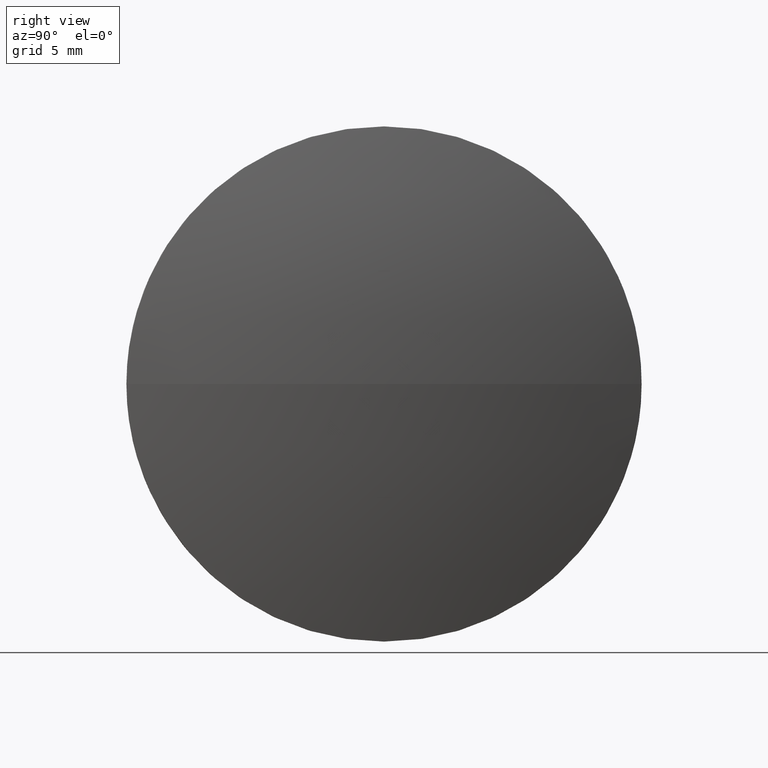
[diagram: clean part render]
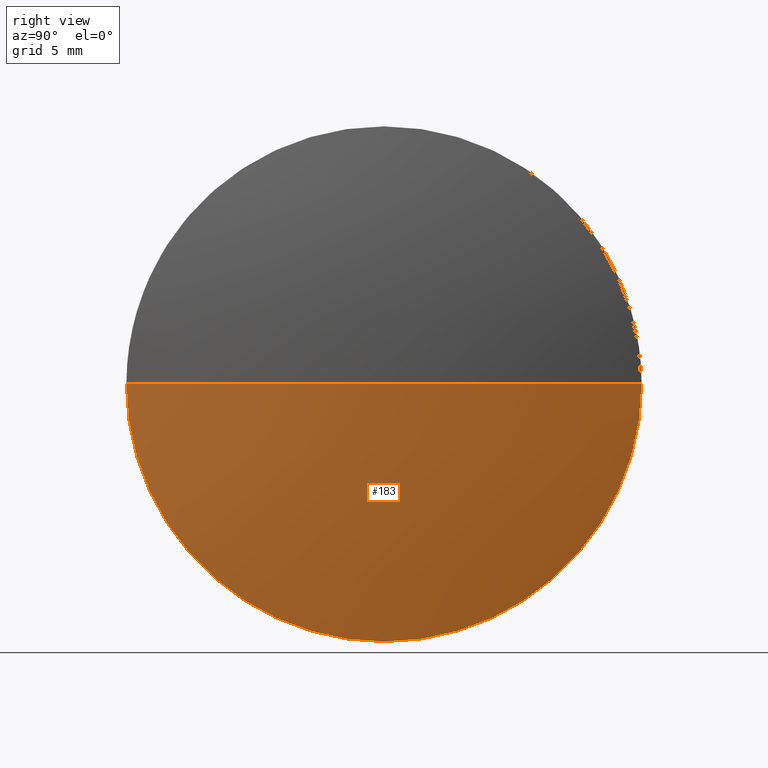
[diagram: same view with one face highlighted and labeled with its STEP entity id]
A machine part, right view. The second image highlights one B-rep face of the part: STEP entity #183.
In plain terms, the highlighted spherical surface has radius 82.5308 mm.
Its self-contained STEP definition (entity closure, byte-faithful):
#1 = CARTESIAN_POINT ( 'NONE',  ( 459.2914818533709500, 106.5576231808466900, -19.99999999999998900 ) ) ;
#2 = DIRECTION ( 'NONE',  ( -1.000000000000000000, -0.0000000000000000000, -0.0000000000000000000 ) ) ;
#4 = ORIENTED_EDGE ( 'NONE', *, *, #102, .F. ) ;
#9 = DIRECTION ( 'NONE',  ( 0.0000000000000000000, 1.000000000000000000, 0.0000000000000000000 ) ) ;
#12 = AXIS2_PLACEMENT_3D ( 'NONE', #21, #64, #93 ) ;
#21 = CARTESIAN_POINT ( 'NONE',  ( 379.2206688452406500, 106.5576231808466300, 0.0000000000000000000 ) ) ;
#23 = ORIENTED_EDGE ( 'NONE', *, *, #77, .T. ) ;
#27 = CARTESIAN_POINT ( 'NONE',  ( 461.7514818533708800, 106.5576231808466300, 0.0000000000000000000 ) ) ;
#28 = CIRCLE ( 'NONE', #12, 82.53081300813025200 ) ;
#29 = DIRECTION ( 'NONE',  ( 0.0000000000000000000, 1.224646799147353200E-016, -1.000000000000000000 ) ) ;
#32 = CARTESIAN_POINT ( 'NONE',  ( 379.2206688452406500, 106.5576231808466300, 0.0000000000000000000 ) ) ;
#39 = VERTEX_POINT ( 'NONE', #27 ) ;
#41 = CARTESIAN_POINT ( 'NONE',  ( 459.2914818533709500, 126.5576231808466500, 0.0000000000000000000 ) ) ;
#48 = DIRECTION ( 'NONE',  ( 0.0000000000000000000, 0.0000000000000000000, 1.000000000000000000 ) ) ;
#52 = ORIENTED_EDGE ( 'NONE', *, *, #116, .F. ) ;
#58 = DIRECTION ( 'NONE',  ( 0.0000000000000000000, 0.0000000000000000000, 1.000000000000000000 ) ) ;
#61 = AXIS2_PLACEMENT_3D ( 'NONE', #125, #92, #48 ) ;
#64 = DIRECTION ( 'NONE',  ( -0.0000000000000000000, 0.0000000000000000000, 1.000000000000000000 ) ) ;
#65 = DIRECTION ( 'NONE',  ( -0.0000000000000000000, 0.0000000000000000000, -1.000000000000000000 ) ) ;
#67 = EDGE_CURVE ( 'NONE', #95, #85, #132, .T. ) ;
#77 = EDGE_CURVE ( 'NONE', #39, #185, #175, .T. ) ;
#81 = ORIENTED_EDGE ( 'NONE', *, *, #67, .F. ) ;
#83 = AXIS2_PLACEMENT_3D ( 'NONE', #32, #65, #9 ) ;
#85 = VERTEX_POINT ( 'NONE', #1 ) ;
#87 = CARTESIAN_POINT ( 'NONE',  ( 459.2914818533709500, 106.5576231808466900, 0.0000000000000000000 ) ) ;
#92 = DIRECTION ( 'NONE',  ( -1.000000000000000000, -0.0000000000000000000, -0.0000000000000000000 ) ) ;
#93 = DIRECTION ( 'NONE',  ( 1.000000000000000000, 0.0000000000000000000, 0.0000000000000000000 ) ) ;
#95 = VERTEX_POINT ( 'NONE', #41 ) ;
#102 = EDGE_CURVE ( 'NONE', #85, #185, #149, .T. ) ;
#106 = CARTESIAN_POINT ( 'NONE',  ( 379.2206688452406500, 106.5576231808466300, 0.0000000000000000000 ) ) ;
#112 = CARTESIAN_POINT ( 'NONE',  ( 459.2914818533709500, 86.55762318084667600, -2.449293598294701000E-015 ) ) ;
#116 = EDGE_CURVE ( 'NONE', #39, #95, #28, .T. ) ;
#120 = DIRECTION ( 'NONE',  ( 0.0000000000000000000, 1.000000000000000000, 1.224646799147353200E-016 ) ) ;
#125 = CARTESIAN_POINT ( 'NONE',  ( 459.2914818533709500, 106.5576231808466900, 0.0000000000000000000 ) ) ;
#128 = FACE_OUTER_BOUND ( 'NONE', #179, .T. ) ;
#132 = CIRCLE ( 'NONE', #158, 19.99999999999998900 ) ;
#145 = SPHERICAL_SURFACE ( 'NONE', #83, 82.53081300813028100 ) ;
#149 = CIRCLE ( 'NONE', #61, 19.99999999999998900 ) ;
#158 = AXIS2_PLACEMENT_3D ( 'NONE', #87, #2, #58 ) ;
#175 = CIRCLE ( 'NONE', #180, 82.53081300813028100 ) ;
#179 = EDGE_LOOP ( 'NONE', ( #52, #23, #4, #81 ) ) ;
#180 = AXIS2_PLACEMENT_3D ( 'NONE', #106, #29, #120 ) ;
#183 = ADVANCED_FACE ( 'NONE', ( #128 ), #145, .T. ) ;
#185 = VERTEX_POINT ( 'NONE', #112 ) ;